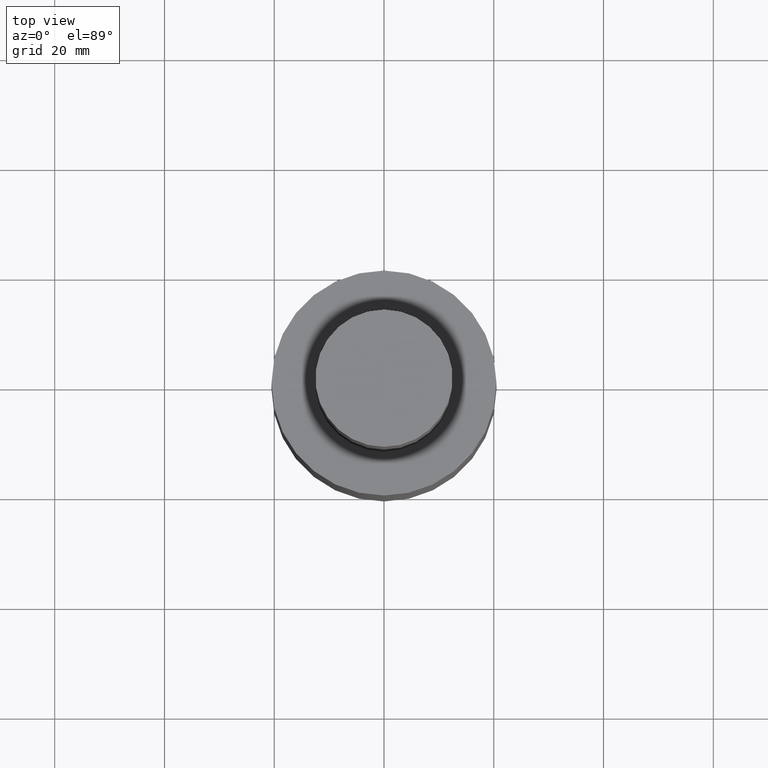
[diagram: clean part render]
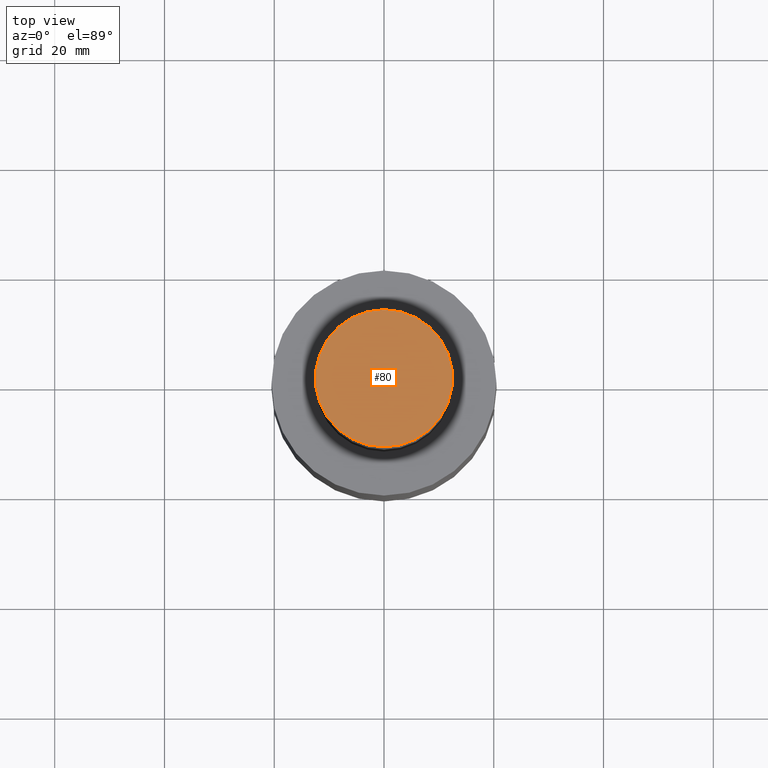
[diagram: same view with one face highlighted and labeled with its STEP entity id]
A machine part, top view. The second image highlights one B-rep face of the part: STEP entity #80.
In plain terms, the highlighted planar face has unit normal (-0, -0, 1).
Its self-contained STEP definition (entity closure, byte-faithful):
#80=ADVANCED_FACE('',(#96),#97,.T.);
#96=FACE_OUTER_BOUND('',#112,.T.);
#97=PLANE('',#113);
#112=EDGE_LOOP('',(#138));
#113=AXIS2_PLACEMENT_3D('',#139,#140,#141);
#138=ORIENTED_EDGE('',*,*,#146,.T.);
#139=CARTESIAN_POINT('',(-3.06161699786838E-015,6.24999999999999,50.0));
#140=DIRECTION('',(-6.12323399573677E-017,-1.22464679914735E-016,1.0));
#141=DIRECTION('',(-1.23259516440783E-032,1.0,1.22464679914735E-016));
#146=EDGE_CURVE('',#155,#155,#156,.T.);
#155=VERTEX_POINT('',#165);
#156=CIRCLE('',#166,12.5);
#165=CARTESIAN_POINT('',(-3.06161699786838E-015,12.5,50.0));
#166=AXIS2_PLACEMENT_3D('',#179,#180,#181);
#179=CARTESIAN_POINT('',(-3.06161699786838E-015,-6.12323399573676E-015,50.0));
#180=DIRECTION('',(-6.12323399573677E-017,-1.22464679914735E-016,1.0));
#181=DIRECTION('',(-1.23259516440783E-032,1.0,1.22464679914735E-016));